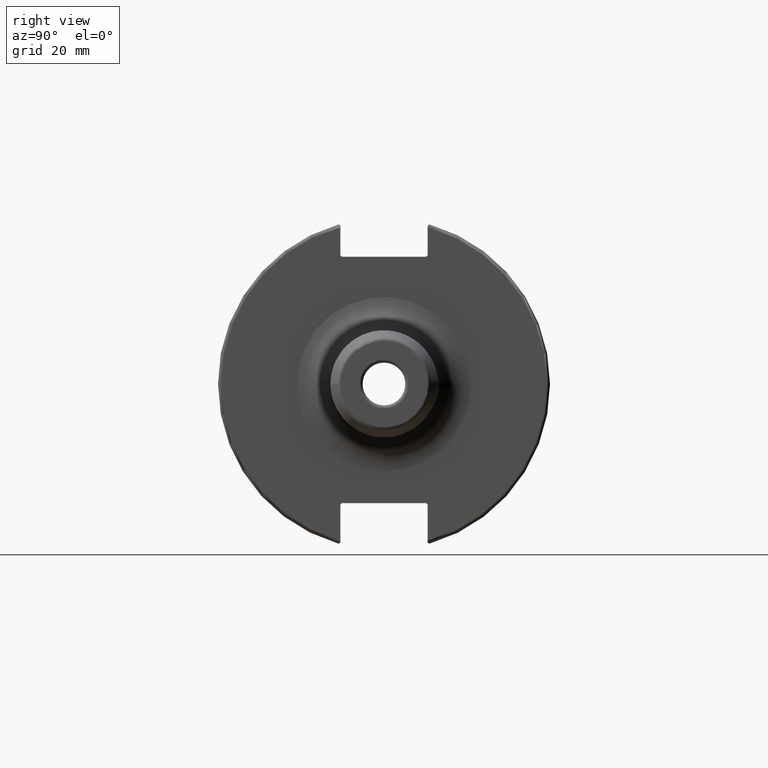
[diagram: clean part render]
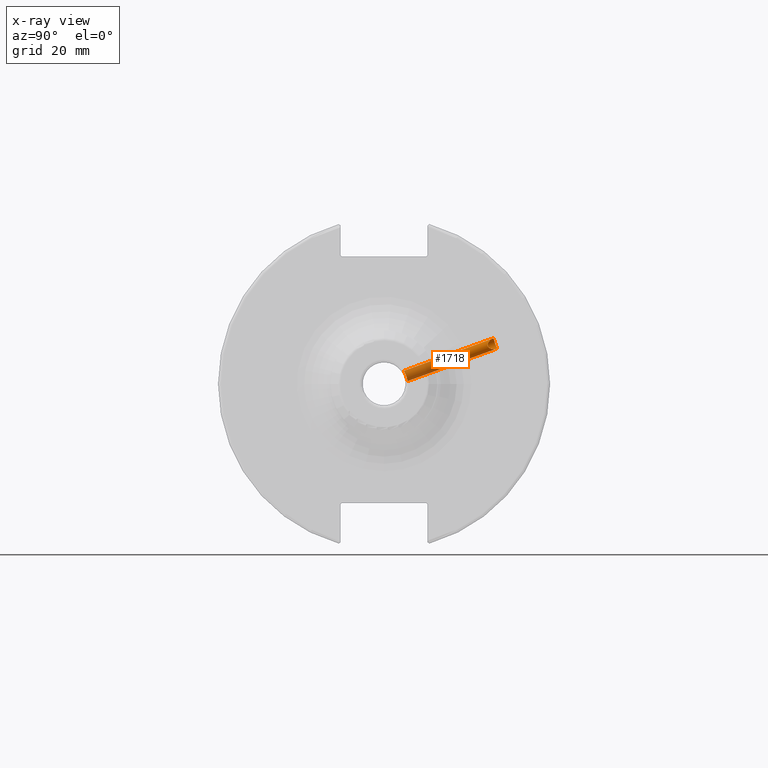
[diagram: x-ray — body ghosted, one internal face saturated and labeled with its STEP entity id]
A machine part, right view, then the same camera in x-ray: the body is ghosted and one INTERNAL B-rep face — a face not visible from any outside direction — is saturated and labeled: STEP entity #1718.
In plain terms, the highlighted cylindrical surface (bore or boss wall) has radius 1.621 mm, axis along (-0, 0.9397, 0.342).
Its self-contained STEP definition (entity closure, byte-faithful):
#146=LINE('',#3105,#241);
#241=VECTOR('',#2194,1.621);
#427=CYLINDRICAL_SURFACE('',#1878,1.621);
#471=FACE_OUTER_BOUND('',#571,.T.);
#571=EDGE_LOOP('',(#1332,#1333,#1334,#1335,#1336,#1337));
#652=B_SPLINE_CURVE_WITH_KNOTS('',3,(#2787,#2788,#2789,#2790,#2791,#2792,
#2793,#2794,#2795,#2796,#2797,#2798,#2799,#2800,#2801,#2802,#2803,#2804,
#2805,#2806,#2807,#2808,#2809,#2810,#2811,#2812),.UNSPECIFIED.,.F.,.F.,
(4,2,2,2,2,2,2,2,2,2,2,2,4),(0.,0.0613042810958889,0.122608562191778,0.183906587521476,
0.245204612851174,0.306502638180871,0.367800663510569,0.429104944606458,
0.490409225702347,0.551713506798235,0.613017787894124,0.674315813223821,
0.735613838553518),.UNSPECIFIED.);
#653=B_SPLINE_CURVE_WITH_KNOTS('',3,(#2813,#2814,#2815,#2816,#2817,#2818,
#2819,#2820,#2821,#2822),.UNSPECIFIED.,.F.,.F.,(4,2,2,2,4),(0.735613838553518,
0.796911863883216,0.858209889212914,0.919514170308802,0.980818451404691),
 .UNSPECIFIED.);
#663=B_SPLINE_CURVE_WITH_KNOTS('',3,(#3061,#3062,#3063,#3064,#3065,#3066,
#3067,#3068,#3069,#3070,#3071,#3072,#3073,#3074,#3075,#3076,#3077,#3078,
#3079,#3080,#3081,#3082,#3083,#3084,#3085,#3086,#3087,#3088,#3089,#3090,
#3091,#3092),.UNSPECIFIED.,.F.,.F.,(4,2,2,2,2,2,2,2,2,2,2,2,2,2,2,4),(0.,
0.0901464867255005,0.192567236071378,0.257828346844417,0.290458902230936,
0.323089457617456,0.355720013003976,0.388350568390497,0.453611679163538,
0.55603242850942,0.646178915234919,0.678611098115673,0.711043280996427,
0.775907646757934,0.842857882203165,0.896346031951305),.UNSPECIFIED.);
#664=B_SPLINE_CURVE_WITH_KNOTS('',3,(#3093,#3094,#3095,#3096,#3097,#3098,
#3099,#3100,#3101,#3102,#3103,#3104),.UNSPECIFIED.,.F.,.F.,(4,2,2,2,2,4),
(0.896346031951305,0.951237898511464,1.02037592667749,1.08329276522307,
1.11475118449585,1.14620960376864),.UNSPECIFIED.);
#737=VERTEX_POINT('',#2785);
#738=VERTEX_POINT('',#2786);
#773=VERTEX_POINT('',#3059);
#774=VERTEX_POINT('',#3060);
#941=EDGE_CURVE('',#737,#738,#652,.T.);
#942=EDGE_CURVE('',#738,#737,#653,.T.);
#986=EDGE_CURVE('',#773,#774,#663,.T.);
#987=EDGE_CURVE('',#774,#773,#664,.T.);
#988=EDGE_CURVE('',#774,#738,#146,.T.);
#1332=ORIENTED_EDGE('',*,*,#986,.F.);
#1333=ORIENTED_EDGE('',*,*,#987,.F.);
#1334=ORIENTED_EDGE('',*,*,#988,.T.);
#1335=ORIENTED_EDGE('',*,*,#942,.T.);
#1336=ORIENTED_EDGE('',*,*,#941,.T.);
#1337=ORIENTED_EDGE('',*,*,#988,.F.);
#1718=ADVANCED_FACE('',(#471),#427,.F.);
#1878=AXIS2_PLACEMENT_3D('',#3058,#2192,#2193);
#2192=DIRECTION('center_axis',(-1.32999192572579E-16,0.939692620785908,
0.342020143325669));
#2193=DIRECTION('ref_axis',(1.,1.41534784492982E-16,0.));
#2194=DIRECTION('',(1.32999192572579E-16,-0.939692620785908,-0.342020143325669));
#2785=CARTESIAN_POINT('',(11.1341,6.95346328967804,0.80582149332211));
#2786=CARTESIAN_POINT('',(9.5131,6.57784834550135,2.3941410032797));
#2787=CARTESIAN_POINT('Ctrl Pts',(11.1341,6.95346328967804,0.80582149332211));
#2788=CARTESIAN_POINT('Ctrl Pts',(11.338447603653,6.95346328967804,0.80582149332211));
#2789=CARTESIAN_POINT('Ctrl Pts',(11.5558858559344,6.9489856151589,0.84781376495002));
#2790=CARTESIAN_POINT('Ctrl Pts',(11.955033227138,6.92641118197014,1.0158824877216));
#2791=CARTESIAN_POINT('Ctrl Pts',(12.1368096133175,6.9077940068322,1.14172879648065));
#2792=CARTESIAN_POINT('Ctrl Pts',(12.4238159268308,6.85439814147702,1.42772003025959));
#2793=CARTESIAN_POINT('Ctrl Pts',(12.5484516639509,6.81594760192236,1.6071741089375));
#2794=CARTESIAN_POINT('Ctrl Pts',(12.7141138416802,6.71285124761747,1.99443687625922));
#2795=CARTESIAN_POINT('Ctrl Pts',(12.7551,6.6477322101975,2.20213666304282));
#2796=CARTESIAN_POINT('Ctrl Pts',(12.7551,6.5079644808052,2.58614534351658));
#2797=CARTESIAN_POINT('Ctrl Pts',(12.7141138416802,6.424341708083,2.78711032142742));
#2798=CARTESIAN_POINT('Ctrl Pts',(12.5484516639509,6.25439038887677,3.15003987151214));
#2799=CARTESIAN_POINT('Ctrl Pts',(12.4238159268308,6.16849435275566,3.31222520168988));
#2800=CARTESIAN_POINT('Ctrl Pts',(12.1368096133175,6.02556633714446,3.56562939776578));
#2801=CARTESIAN_POINT('Ctrl Pts',(11.955033227138,5.95893547271035,3.6740001527837));
#2802=CARTESIAN_POINT('Ctrl Pts',(11.5558858559344,5.86819599923775,3.81725882987441));
#2803=CARTESIAN_POINT('Ctrl Pts',(11.338447603653,5.84463398501622,3.85230496991003));
#2804=CARTESIAN_POINT('Ctrl Pts',(10.929752396347,5.84463398501622,3.85230496991003));
#2805=CARTESIAN_POINT('Ctrl Pts',(10.7123141440656,5.86819599923775,3.81725882987441));
#2806=CARTESIAN_POINT('Ctrl Pts',(10.313166772862,5.95893547271035,3.6740001527837));
#2807=CARTESIAN_POINT('Ctrl Pts',(10.1313903866825,6.02556633714446,3.56562939776577));
#2808=CARTESIAN_POINT('Ctrl Pts',(9.84438407316923,6.16849435275566,3.31222520168987));
#2809=CARTESIAN_POINT('Ctrl Pts',(9.71974833604907,6.25439038887677,3.15003987151214));
#2810=CARTESIAN_POINT('Ctrl Pts',(9.55408615831983,6.424341708083,2.78711032142742));
#2811=CARTESIAN_POINT('Ctrl Pts',(9.5131,6.50796448080521,2.58614534351658));
#2812=CARTESIAN_POINT('Ctrl Pts',(9.5131,6.57784834550135,2.3941410032797));
#2813=CARTESIAN_POINT('Ctrl Pts',(9.5131,6.57784834550135,2.3941410032797));
#2814=CARTESIAN_POINT('Ctrl Pts',(9.5131,6.6477322101975,2.20213666304282));
#2815=CARTESIAN_POINT('Ctrl Pts',(9.55408615831982,6.71285124761747,1.99443687625922));
#2816=CARTESIAN_POINT('Ctrl Pts',(9.71974833604907,6.81594760192236,1.6071741089375));
#2817=CARTESIAN_POINT('Ctrl Pts',(9.84438407316923,6.85439814147702,1.4277200302596));
#2818=CARTESIAN_POINT('Ctrl Pts',(10.1313903866825,6.9077940068322,1.14172879648066));
#2819=CARTESIAN_POINT('Ctrl Pts',(10.313166772862,6.92641118197014,1.01588248772161));
#2820=CARTESIAN_POINT('Ctrl Pts',(10.7123141440656,6.9489856151589,0.847813764950021));
#2821=CARTESIAN_POINT('Ctrl Pts',(10.929752396347,6.95346328967804,0.80582149332211));
#2822=CARTESIAN_POINT('Ctrl Pts',(11.1341,6.95346328967804,0.80582149332211));
#3058=CARTESIAN_POINT('Origin',(11.1341,-128.546169597788,-46.78697946253));
#3059=CARTESIAN_POINT('',(11.1341,33.313335016979,10.4000301811349));
#3060=CARTESIAN_POINT('',(9.5131,32.9255829555453,11.9839321416811));
#3061=CARTESIAN_POINT('Ctrl Pts',(11.1341,33.313335016979,10.4000301811349));
#3062=CARTESIAN_POINT('Ctrl Pts',(11.3802455962889,33.1513761728118,10.3410819826819));
#3063=CARTESIAN_POINT('Ctrl Pts',(11.6185813616689,32.8827152960875,10.3088388227607));
#3064=CARTESIAN_POINT('Ctrl Pts',(12.0026245261189,32.3683985728797,10.3052418266611));
#3065=CARTESIAN_POINT('Ctrl Pts',(12.2151564972204,32.0202637587831,10.3436146141385));
#3066=CARTESIAN_POINT('Ctrl Pts',(12.470544244763,31.5456859836842,10.4918253969895));
#3067=CARTESIAN_POINT('Ctrl Pts',(12.5682510694473,31.3466778285717,10.5797338737154));
#3068=CARTESIAN_POINT('Ctrl Pts',(12.6749644342972,31.0919332722504,10.7712375769509));
#3069=CARTESIAN_POINT('Ctrl Pts',(12.7040411918509,31.0141779263436,10.8449328856202));
#3070=CARTESIAN_POINT('Ctrl Pts',(12.7440975493615,30.8830267246802,11.011980005846));
#3071=CARTESIAN_POINT('Ctrl Pts',(12.7551,30.8296132843075,11.1053125302729));
#3072=CARTESIAN_POINT('Ctrl Pts',(12.7551,30.7552112361069,11.3097304776653));
#3073=CARTESIAN_POINT('Ctrl Pts',(12.7440975493615,30.7361353150098,11.4155608370272));
#3074=CARTESIAN_POINT('Ctrl Pts',(12.7040411918509,30.7292271451376,11.6278287226399));
#3075=CARTESIAN_POINT('Ctrl Pts',(12.6749644342972,30.7414207644876,11.7342627772657));
#3076=CARTESIAN_POINT('Ctrl Pts',(12.5682510694473,30.8134702086235,12.0447097694044));
#3077=CARTESIAN_POINT('Ctrl Pts',(12.470544244763,30.909412820357,12.2399715458362));
#3078=CARTESIAN_POINT('Ctrl Pts',(12.2151564972204,31.1776924329607,12.6585603061158));
#3079=CARTESIAN_POINT('Ctrl Pts',(12.0026245261189,31.419713620416,12.9117323117316));
#3080=CARTESIAN_POINT('Ctrl Pts',(11.6185813616689,31.8160151927575,13.2395732699902));
#3081=CARTESIAN_POINT('Ctrl Pts',(11.3802455962889,32.0425468681501,13.3875654592698));
#3082=CARTESIAN_POINT('Ctrl Pts',(11.0455437036416,32.2627739715028,13.4677215696689));
#3083=CARTESIAN_POINT('Ctrl Pts',(10.949041068442,32.3178177707779,13.4799176447313));
#3084=CARTESIAN_POINT('Ctrl Pts',(10.7480580973579,32.4122554138726,13.476014806968));
#3085=CARTESIAN_POINT('Ctrl Pts',(10.6435548972,32.4515923889905,13.4597199648405));
#3086=CARTESIAN_POINT('Ctrl Pts',(10.3366162582338,32.5470684103066,13.3661104048289));
#3087=CARTESIAN_POINT('Ctrl Pts',(10.1402784858692,32.5832298796224,13.2412869364785));
#3088=CARTESIAN_POINT('Ctrl Pts',(9.83058058671522,32.6561835398779,12.9382662768301));
#3089=CARTESIAN_POINT('Ctrl Pts',(9.68758434388229,32.703450459206,12.7168272168347));
#3090=CARTESIAN_POINT('Ctrl Pts',(9.55039858081597,32.8019228385611,12.3526096727086));
#3091=CARTESIAN_POINT('Ctrl Pts',(9.5131,32.8646028734017,12.1514735404072));
#3092=CARTESIAN_POINT('Ctrl Pts',(9.5131,32.9255829555453,11.9839321416811));
#3093=CARTESIAN_POINT('Ctrl Pts',(9.5131,32.9255829555453,11.9839321416811));
#3094=CARTESIAN_POINT('Ctrl Pts',(9.5131,32.9881633691064,11.811993868522));
#3095=CARTESIAN_POINT('Ctrl Pts',(9.55236126545399,33.0717654386517,11.6127976857422));
#3096=CARTESIAN_POINT('Ctrl Pts',(9.6971280608823,33.235306021508,11.2617650894586));
#3097=CARTESIAN_POINT('Ctrl Pts',(9.84844561894806,33.3445591751872,11.0576871238397));
#3098=CARTESIAN_POINT('Ctrl Pts',(10.1659386735598,33.4788378837982,10.7839566642822));
#3099=CARTESIAN_POINT('Ctrl Pts',(10.3586687330206,33.5261629211717,10.6707383327549));
#3100=CARTESIAN_POINT('Ctrl Pts',(10.6579468329885,33.5087828678993,10.5433588693138));
#3101=CARTESIAN_POINT('Ctrl Pts',(10.7595056152646,33.4883034381597,10.5071010619333));
#3102=CARTESIAN_POINT('Ctrl Pts',(10.9546197272613,33.418756407954,10.4457719962213));
#3103=CARTESIAN_POINT('Ctrl Pts',(11.0482025718087,33.369853794469,10.4206013338184));
#3104=CARTESIAN_POINT('Ctrl Pts',(11.1341,33.313335016979,10.4000301811349));
#3105=CARTESIAN_POINT('',(9.51310000000002,-128.546169597788,-46.78697946253));